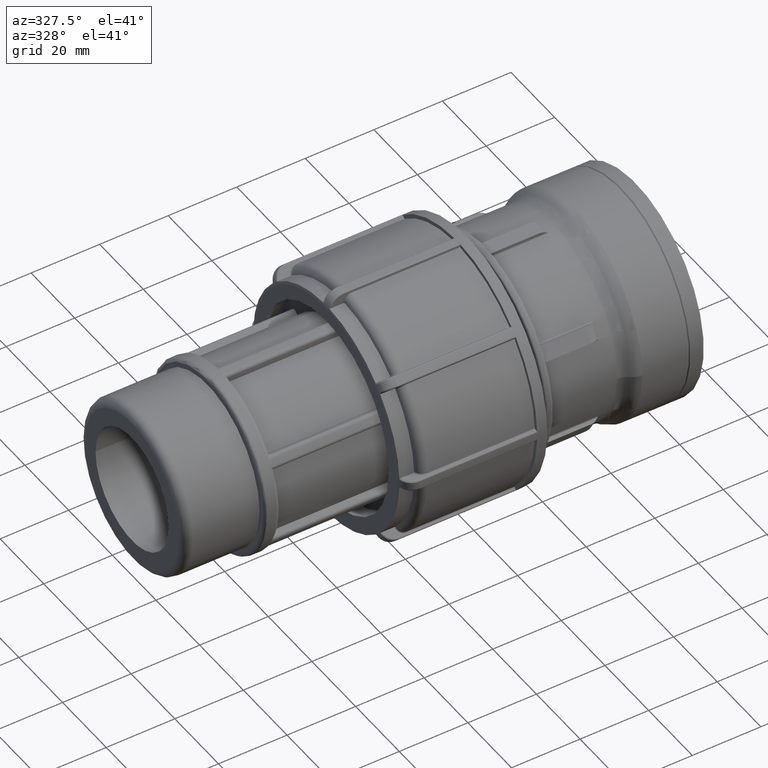
[diagram: clean part render]
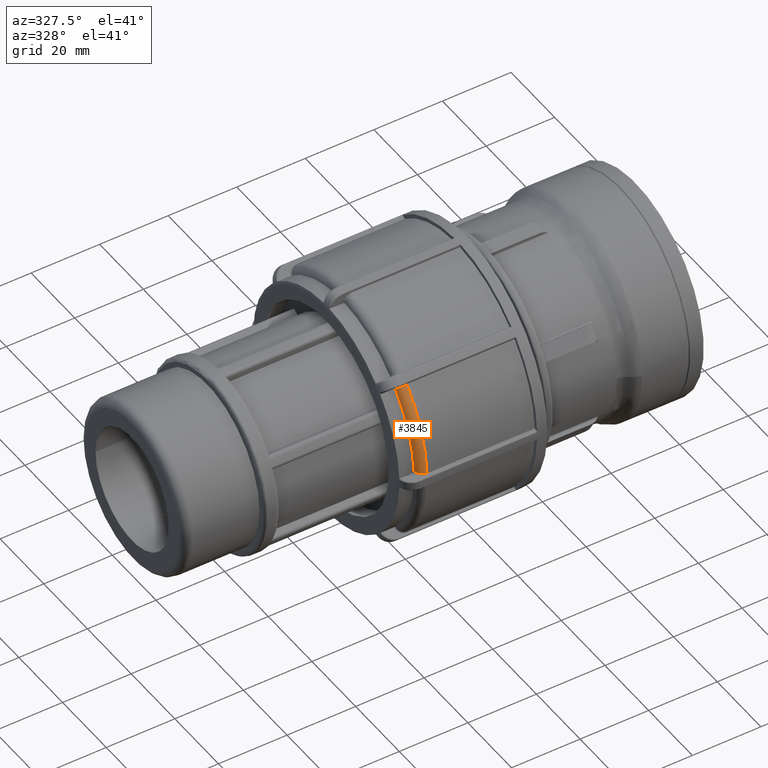
[diagram: same view with one face highlighted and labeled with its STEP entity id]
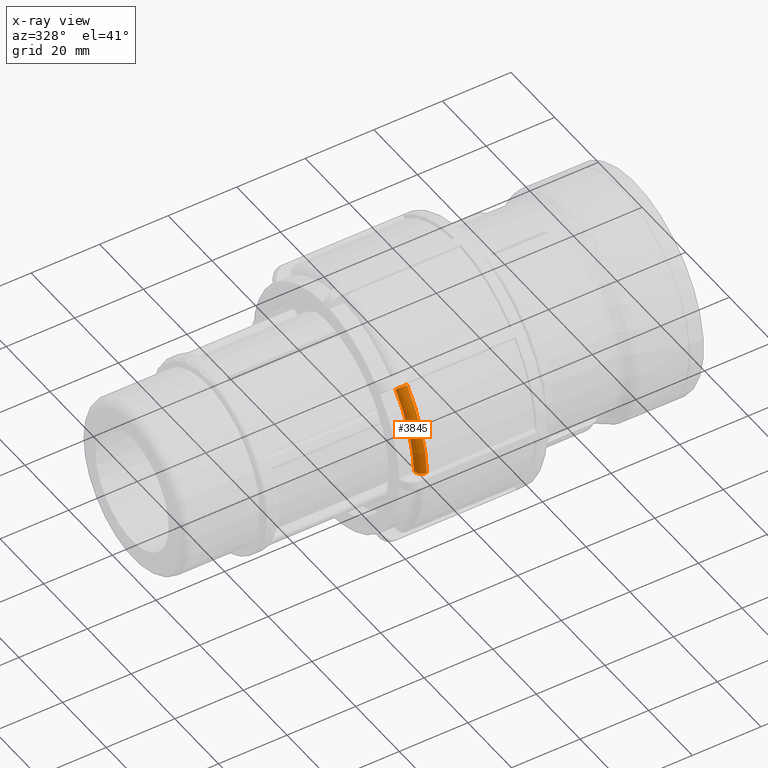
[diagram: x-ray of the same camera — body ghosted, the highlighted face saturated]
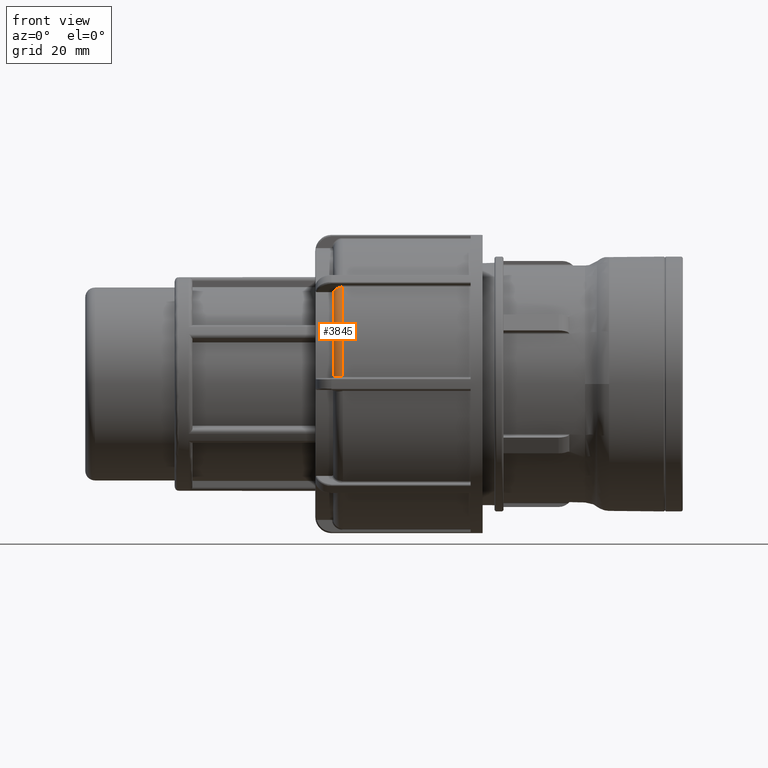
[diagram: same view with one face highlighted and labeled with its STEP entity id]
A machine part, auxiliary view. The second image highlights one B-rep face of the part: STEP entity #3845.
The next image is the same camera in x-ray: the body ghosted, the highlighted face saturated — about 0% of this face is hidden behind the body in this view.
A second angle (front view) of the same face is appended — the face is thin or edge-on in the first view.
In plain terms, the highlighted toroidal blend (fillet) surface has major radius 33.2088 mm and minor (blend) radius 2.3902 mm.
Its self-contained STEP definition (entity closure, byte-faithful):
#873=FACE_OUTER_BOUND('',#1112,.T.);
#1112=EDGE_LOOP('',(#3563,#3564,#3565,#3566));
#1253=B_SPLINE_CURVE_WITH_KNOTS('',3,(#7259,#7260,#7261,#7262,#7263),
 .UNSPECIFIED.,.F.,.F.,(4,1,4),(-0.404072272899019,-0.171978512441605,3.62223530257533E-8),
 .UNSPECIFIED.);
#1265=B_SPLINE_CURVE_WITH_KNOTS('',3,(#7564,#7565,#7566,#7567,#7568),
 .UNSPECIFIED.,.F.,.F.,(4,1,4),(-0.404072124275421,-0.174070320337166,0.),
 .UNSPECIFIED.);
#1452=CIRCLE('',#4144,33.4621);
#1492=CIRCLE('',#4227,35.599);
#1799=VERTEX_POINT('',#7234);
#1801=VERTEX_POINT('',#7257);
#1825=VERTEX_POINT('',#7519);
#1826=VERTEX_POINT('',#7547);
#2301=EDGE_CURVE('',#1801,#1799,#1253,.T.);
#2344=EDGE_CURVE('',#1826,#1825,#1265,.T.);
#2345=EDGE_CURVE('',#1826,#1799,#1452,.T.);
#2456=EDGE_CURVE('',#1801,#1825,#1492,.T.);
#3563=ORIENTED_EDGE('',*,*,#2301,.F.);
#3564=ORIENTED_EDGE('',*,*,#2456,.T.);
#3565=ORIENTED_EDGE('',*,*,#2344,.F.);
#3566=ORIENTED_EDGE('',*,*,#2345,.T.);
#3639=TOROIDAL_SURFACE('',#4235,33.20885,2.39015);
#3845=ADVANCED_FACE('',(#873),#3639,.T.);
#4144=AXIS2_PLACEMENT_3D('',#7570,#4993,#4994);
#4227=AXIS2_PLACEMENT_3D('',#8321,#5201,#5202);
#4235=AXIS2_PLACEMENT_3D('',#8329,#5217,#5218);
#4993=DIRECTION('center_axis',(1.,0.,0.));
#4994=DIRECTION('ref_axis',(0.,0.,-1.));
#5201=DIRECTION('center_axis',(-1.,0.,0.));
#5202=DIRECTION('ref_axis',(0.,1.,-1.83871538537445E-16));
#5217=DIRECTION('center_axis',(1.,0.,0.));
#5218=DIRECTION('ref_axis',(0.,1.,-1.83871538537445E-16));
#7234=CARTESIAN_POINT('',(-86.005,-33.4118650149862,1.83287005277));
#7257=CARTESIAN_POINT('',(-83.6283045083562,-35.5526362492436,1.8162755102041));
#7259=CARTESIAN_POINT('Ctrl Pts',(-83.6283045083562,-35.5526362492436,1.8162755102041));
#7260=CARTESIAN_POINT('Ctrl Pts',(-84.2989715637785,-35.5526362492436,1.8162755102041));
#7261=CARTESIAN_POINT('Ctrl Pts',(-85.4562781165055,-35.0298539855999,1.81996721396456));
#7262=CARTESIAN_POINT('Ctrl Pts',(-85.9523009550896,-33.9062616350175,1.82875699898555));
#7263=CARTESIAN_POINT('Ctrl Pts',(-86.0049978214332,-33.4118647826724,1.83287006773122));
#7519=CARTESIAN_POINT('',(-83.6283045083562,-26.4238109106672,23.8552094511305));
#7547=CARTESIAN_POINT('',(-86.005,-24.9217911675337,22.3297214808389));
#7564=CARTESIAN_POINT('Ctrl Pts',(-86.0049958667264,-24.9217908661529,22.3297211576169));
#7565=CARTESIAN_POINT('Ctrl Pts',(-85.9343891908601,-25.3853477511699,22.8010558774832));
#7566=CARTESIAN_POINT('Ctrl Pts',(-85.3001883504393,-26.1558412387396,23.5834257363931));
#7567=CARTESIAN_POINT('Ctrl Pts',(-84.1313047999059,-26.4238109106672,23.8552094511305));
#7568=CARTESIAN_POINT('Ctrl Pts',(-83.6283045083562,-26.4238109106672,23.8552094511305));
#7570=CARTESIAN_POINT('Origin',(-86.005,0.,0.));
#8321=CARTESIAN_POINT('Origin',(-83.6283045083562,0.,0.));
#8329=CARTESIAN_POINT('Origin',(-83.6283045083562,0.,0.));